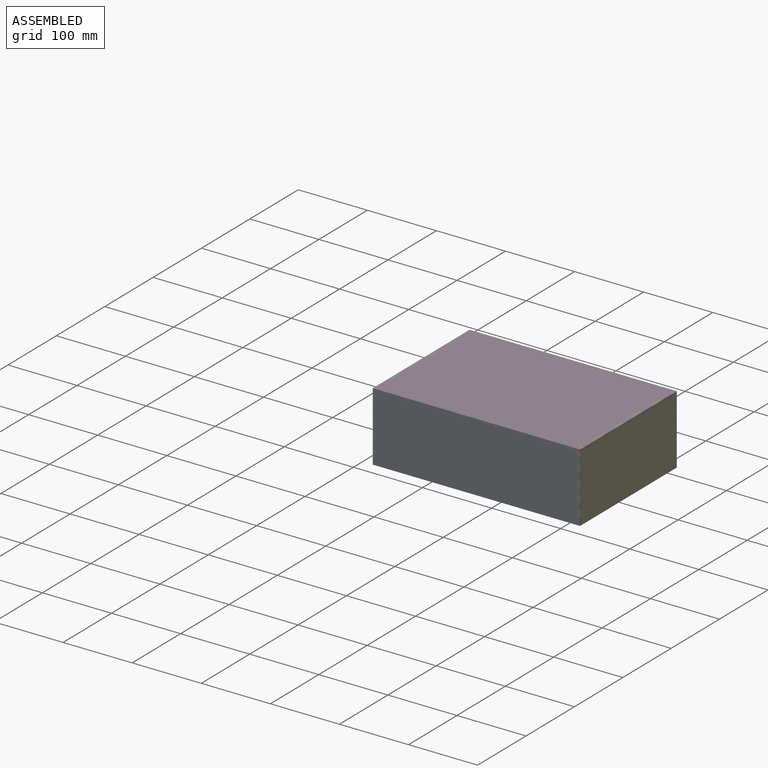
[diagram: assembled view]
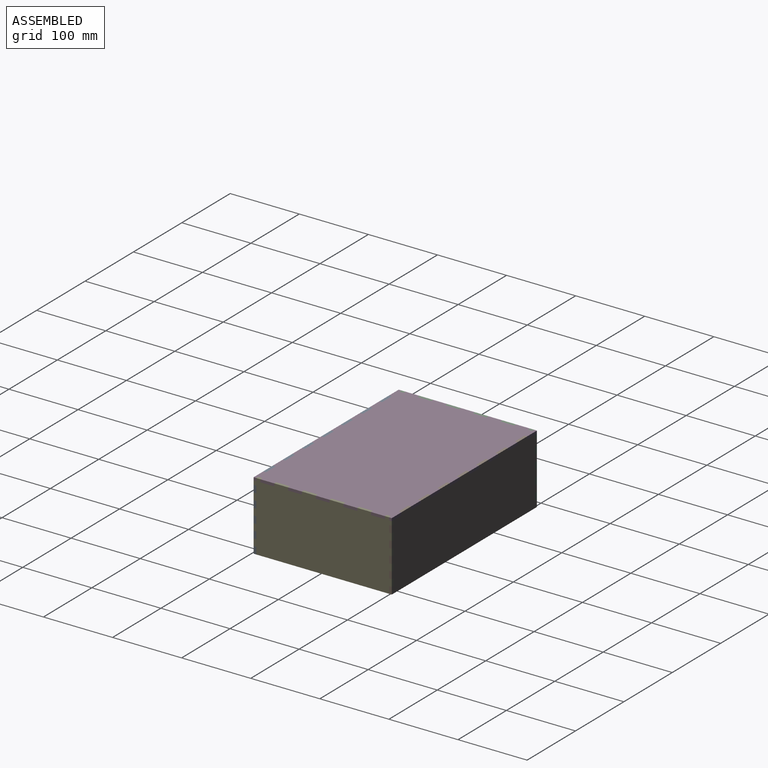
[diagram: assembled view, second angle]
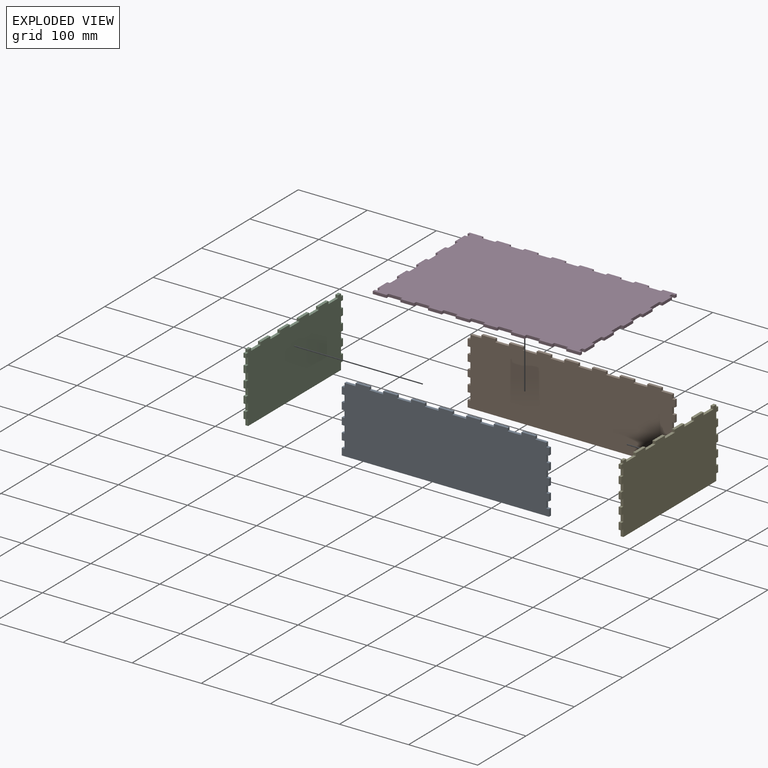
[diagram: exploded view]
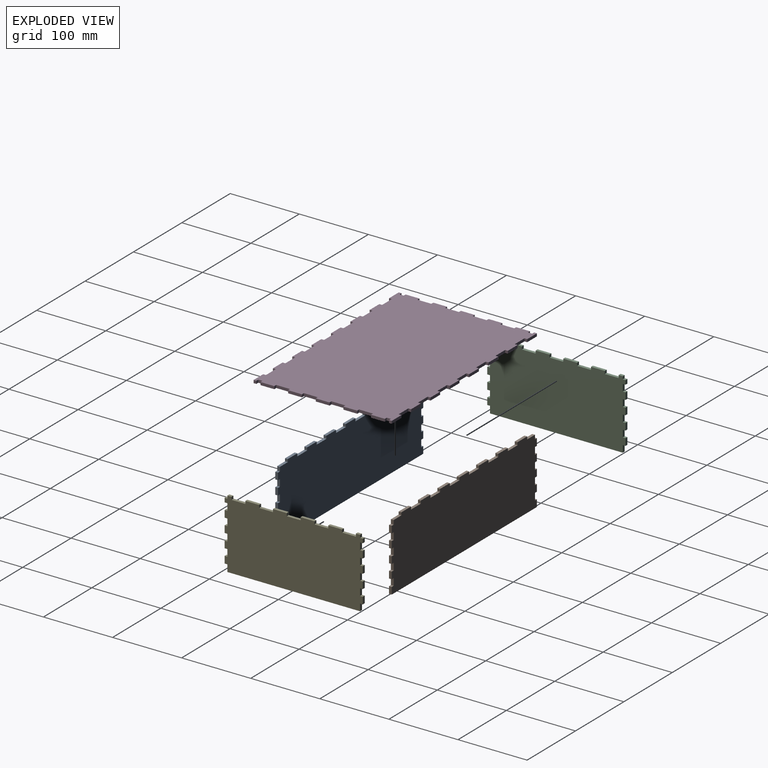
[diagram: exploded view, second angle]
ASSEMBLY  parts=5 mates=4
PART A: 70 faces, bbox 300x4x100 mm
  f0: plane 10x4mm, normal (-1,0,0), area 40mm2, adj f1,f67,f68,f69
  f1: plane 4x4mm, normal (0,0,1), area 16mm2, adj f0,f2,f68,f69
  f2: plane 10x4mm, normal (-1,0,0), area 40mm2, adj f1,f3,f68,f69
  f3: plane 300x4mm, normal (0,0,-1), area 1200mm2, adj f2,f4,f68,f69
  f4: plane 10x4mm, normal (1,0,0), area 40mm2, adj f3,f5,f68,f69
  f5: plane 4x4mm, normal (0,0,1), area 16mm2, adj f4,f6,f68,f69
  f6: plane 10x4mm, normal (1,0,0), area 40mm2, adj f5,f7,f68,f69
  f7: plane 4x4mm, normal (0,0,-1), area 16mm2, adj f6,f8,f68,f69
  f8: plane 10x4mm, normal (1,0,0), area 40mm2, adj f7,f9,f68,f69
  f9: plane 4x4mm, normal (0,0,1), area 16mm2, adj f8,f10,f68,f69
  f10: plane 10x4mm, normal (1,0,0), area 40mm2, adj f9,f11,f68,f69
  f11: plane 4x4mm, normal (0,0,-1), area 16mm2, adj f10,f12,f68,f69
  f12: plane 10x4mm, normal (1,0,0), area 40mm2, adj f11,f13,f68,f69
  f13: plane 4x4mm, normal (0,0,1), area 16mm2, adj f12,f14,f68,f69
  f14: plane 10x4mm, normal (1,0,0), area 40mm2, adj f13,f15,f68,f69
  f15: plane 4x4mm, normal (0,0,-1), area 16mm2, adj f14,f16,f68,f69
  f16: plane 10x4mm, normal (1,0,0), area 40mm2, adj f15,f17,f68,f69
  f17: plane 4x4mm, normal (0,0,1), area 16mm2, adj f16,f18,f68,f69
  f18: plane 10x4mm, normal (1,0,0), area 40mm2, adj f17,f19,f68,f69
  f19: plane 4x4mm, normal (0,0,-1), area 16mm2, adj f18,f20,f68,f69
  f20: plane 10x4mm, normal (1,0,0), area 40mm2, adj f19,f21,f68,f69
  f21: plane 4x4mm, normal (0,0,1), area 16mm2, adj f20,f22,f68,f69
  f22: plane 6x4mm, normal (1,0,0), area 24mm2, adj f21,f23,f68,f69
  f23: plane 16x4mm, normal (0,0,1), area 64mm2, adj f22,f24,f68,f69
  f24: plane 4x4mm, normal (1,0,0), area 16mm2, adj f23,f25,f68,f69
  f25: plane 20x4mm, normal (0,0,1), area 80mm2, adj f24,f26,f68,f69
  f26: plane 4x4mm, normal (-1,0,0), area 16mm2, adj f25,f27,f68,f69
  f27: plane 20x4mm, normal (0,0,1), area 80mm2, adj f26,f28,f68,f69
  f28: plane 4x4mm, normal (1,0,0), area 16mm2, adj f27,f29,f68,f69
  f29: plane 20x4mm, normal (0,0,1), area 80mm2, adj f28,f30,f68,f69
  f30: plane 4x4mm, normal (-1,0,0), area 16mm2, adj f29,f31,f68,f69
  f31: plane 20x4mm, normal (0,0,1), area 80mm2, adj f30,f32,f68,f69
  f32: plane 4x4mm, normal (1,0,0), area 16mm2, adj f31,f33,f68,f69
  f33: plane 20x4mm, normal (0,0,1), area 80mm2, adj f32,f34,f68,f69
  f34: plane 4x4mm, normal (-1,0,0), area 16mm2, adj f33,f35,f68,f69
  f35: plane 20x4mm, normal (0,0,1), area 80mm2, adj f34,f36,f68,f69
  f36: plane 4x4mm, normal (1,0,0), area 16mm2, adj f35,f37,f68,f69
  f37: plane 20x4mm, normal (0,0,1), area 80mm2, adj f36,f38,f68,f69
  f38: plane 4x4mm, normal (-1,0,0), area 16mm2, adj f37,f39,f68,f69
  f39: plane 20x4mm, normal (0,0,1), area 80mm2, adj f38,f40,f68,f69
  f40: plane 4x4mm, normal (1,0,0), area 16mm2, adj f39,f41,f68,f69
  f41: plane 20x4mm, normal (0,0,1), area 80mm2, adj f40,f42,f68,f69
  f42: plane 4x4mm, normal (-1,0,0), area 16mm2, adj f41,f43,f68,f69
  f43: plane 20x4mm, normal (0,0,1), area 80mm2, adj f42,f44,f68,f69
  f44: plane 4x4mm, normal (1,0,0), area 16mm2, adj f43,f45,f68,f69
  f45: plane 20x4mm, normal (0,0,1), area 80mm2, adj f44,f46,f68,f69
  f46: plane 4x4mm, normal (-1,0,0), area 16mm2, adj f45,f47,f68,f69
  f47: plane 20x4mm, normal (0,0,1), area 80mm2, adj f46,f48,f68,f69
  f48: plane 4x4mm, normal (1,0,0), area 16mm2, adj f47,f49,f68,f69
  f49: plane 20x4mm, normal (0,0,1), area 80mm2, adj f48,f50,f68,f69
  f50: plane 4x4mm, normal (-1,0,0), area 16mm2, adj f49,f51,f68,f69
  f51: plane 16x4mm, normal (0,0,1), area 64mm2, adj f50,f52,f68,f69
  f52: plane 6x4mm, normal (-1,0,0), area 24mm2, adj f51,f53,f68,f69
  f53: plane 4x4mm, normal (0,0,1), area 16mm2, adj f52,f54,f68,f69
  f54: plane 10x4mm, normal (-1,0,0), area 40mm2, adj f53,f55,f68,f69
  f55: plane 4x4mm, normal (0,0,-1), area 16mm2, adj f54,f56,f68,f69
  f56: plane 10x4mm, normal (-1,0,0), area 40mm2, adj f55,f57,f68,f69
  f57: plane 4x4mm, normal (0,0,1), area 16mm2, adj f56,f58,f68,f69
  f58: plane 10x4mm, normal (-1,0,0), area 40mm2, adj f57,f59,f68,f69
  f59: plane 4x4mm, normal (0,0,-1), area 16mm2, adj f58,f60,f68,f69
  f60: plane 10x4mm, normal (-1,0,0), area 40mm2, adj f59,f61,f68,f69
  f61: plane 4x4mm, normal (0,0,1), area 16mm2, adj f60,f62,f68,f69
  f62: plane 10x4mm, normal (-1,0,0), area 40mm2, adj f61,f63,f68,f69
  f63: plane 4x4mm, normal (0,0,-1), area 16mm2, adj f62,f64,f68,f69
  f64: plane 10x4mm, normal (-1,0,0), area 40mm2, adj f63,f65,f68,f69
  f65: plane 4x4mm, normal (0,0,1), area 16mm2, adj f64,f66,f68,f69
  f66: plane 10x4mm, normal (-1,0,0), area 40mm2, adj f65,f67,f68,f69
  f67: plane 4x4mm, normal (0,0,-1), area 16mm2, adj f0,f66,f68,f69
  f68: plane 300x100mm, normal (0,1,0), area 28992mm2, adj f0,f1,f2,f3,f4,f5,f6,f7
  f69: plane 300x100mm, normal (0,-1,0), area 28992mm2, adj f0,f1,f2,f3,f4,f5,f6,f7
PART B: same geometry as A
PART C: 66 faces, bbox 4x200x100 mm
  f0: plane 20x4mm, normal (0,0,1), area 80mm2, adj f1,f63,f64,f65
  f1: plane 4x4mm, normal (0,1,0), area 16mm2, adj f0,f2,f64,f65
  f2: plane 20x4mm, normal (0,0,1), area 80mm2, adj f1,f3,f64,f65
  f3: plane 4x4mm, normal (0,-1,0), area 16mm2, adj f2,f4,f64,f65
  f4: plane 20x4mm, normal (0,0,1), area 80mm2, adj f3,f5,f64,f65
  f5: plane 4x4mm, normal (0,1,0), area 16mm2, adj f4,f6,f64,f65
  f6: plane 6x4mm, normal (0,0,1), area 24mm2, adj f5,f7,f64,f65
  f7: plane 4x4mm, normal (0,-1,0), area 16mm2, adj f6,f8,f64,f65
  f8: plane 4x4mm, normal (0,0,1), area 16mm2, adj f7,f9,f64,f65
  f9: plane 6x4mm, normal (0,-1,0), area 24mm2, adj f8,f10,f64,f65
  f10: plane 4x4mm, normal (0,0,-1), area 16mm2, adj f9,f11,f64,f65
  f11: plane 10x4mm, normal (0,-1,0), area 40mm2, adj f10,f12,f64,f65
  f12: plane 4x4mm, normal (0,0,1), area 16mm2, adj f11,f13,f64,f65
  f13: plane 10x4mm, normal (0,-1,0), area 40mm2, adj f12,f14,f64,f65
  f14: plane 4x4mm, normal (0,0,-1), area 16mm2, adj f13,f15,f64,f65
  f15: plane 10x4mm, normal (0,-1,0), area 40mm2, adj f14,f16,f64,f65
  f16: plane 4x4mm, normal (0,0,1), area 16mm2, adj f15,f17,f64,f65
  f17: plane 10x4mm, normal (0,-1,0), area 40mm2, adj f16,f18,f64,f65
  f18: plane 4x4mm, normal (0,0,-1), area 16mm2, adj f17,f19,f64,f65
  f19: plane 10x4mm, normal (0,-1,0), area 40mm2, adj f18,f20,f64,f65
  f20: plane 4x4mm, normal (0,0,1), area 16mm2, adj f19,f21,f64,f65
  f21: plane 10x4mm, normal (0,-1,0), area 40mm2, adj f20,f22,f64,f65
  f22: plane 4x4mm, normal (0,0,-1), area 16mm2, adj f21,f23,f64,f65
  f23: plane 10x4mm, normal (0,-1,0), area 40mm2, adj f22,f24,f64,f65
  f24: plane 4x4mm, normal (0,0,1), area 16mm2, adj f23,f25,f64,f65
  f25: plane 10x4mm, normal (0,-1,0), area 40mm2, adj f24,f26,f64,f65
  f26: plane 4x4mm, normal (0,0,-1), area 16mm2, adj f25,f27,f64,f65
  f27: plane 10x4mm, normal (0,-1,0), area 40mm2, adj f26,f28,f64,f65
  f28: plane 192x4mm, normal (0,0,-1), area 768mm2, adj f27,f29,f64,f65
  f29: plane 10x4mm, normal (0,1,0), area 40mm2, adj f28,f30,f64,f65
  f30: plane 4x4mm, normal (0,0,-1), area 16mm2, adj f29,f31,f64,f65
  f31: plane 10x4mm, normal (0,1,0), area 40mm2, adj f30,f32,f64,f65
  f32: plane 4x4mm, normal (0,0,1), area 16mm2, adj f31,f33,f64,f65
  f33: plane 10x4mm, normal (0,1,0), area 40mm2, adj f32,f34,f64,f65
  f34: plane 4x4mm, normal (0,0,-1), area 16mm2, adj f33,f35,f64,f65
  f35: plane 10x4mm, normal (0,1,0), area 40mm2, adj f34,f36,f64,f65
  f36: plane 4x4mm, normal (0,0,1), area 16mm2, adj f35,f37,f64,f65
  f37: plane 10x4mm, normal (0,1,0), area 40mm2, adj f36,f38,f64,f65
  f38: plane 4x4mm, normal (0,0,-1), area 16mm2, adj f37,f39,f64,f65
  f39: plane 10x4mm, normal (0,1,0), area 40mm2, adj f38,f40,f64,f65
  f40: plane 4x4mm, normal (0,0,1), area 16mm2, adj f39,f41,f64,f65
  f41: plane 10x4mm, normal (0,1,0), area 40mm2, adj f40,f42,f64,f65
  f42: plane 4x4mm, normal (0,0,-1), area 16mm2, adj f41,f43,f64,f65
  f43: plane 10x4mm, normal (0,1,0), area 40mm2, adj f42,f44,f64,f65
  f44: plane 4x4mm, normal (0,0,1), area 16mm2, adj f43,f45,f64,f65
  f45: plane 10x4mm, normal (0,1,0), area 40mm2, adj f44,f46,f64,f65
  f46: plane 4x4mm, normal (0,0,-1), area 16mm2, adj f45,f47,f64,f65
  f47: plane 6x4mm, normal (0,1,0), area 24mm2, adj f46,f48,f64,f65
  f48: plane 4x4mm, normal (0,0,1), area 16mm2, adj f47,f49,f64,f65
  f49: plane 4x4mm, normal (0,1,0), area 16mm2, adj f48,f50,f64,f65
  f50: plane 6x4mm, normal (0,0,1), area 24mm2, adj f49,f51,f64,f65
  f51: plane 4x4mm, normal (0,-1,0), area 16mm2, adj f50,f52,f64,f65
  f52: plane 20x4mm, normal (0,0,1), area 80mm2, adj f51,f53,f64,f65
  f53: plane 4x4mm, normal (0,1,0), area 16mm2, adj f52,f54,f64,f65
  f54: plane 20x4mm, normal (0,0,1), area 80mm2, adj f53,f55,f64,f65
  f55: plane 4x4mm, normal (0,-1,0), area 16mm2, adj f54,f56,f64,f65
  f56: plane 20x4mm, normal (0,0,1), area 80mm2, adj f55,f57,f64,f65
  f57: plane 4x4mm, normal (0,1,0), area 16mm2, adj f56,f58,f64,f65
  f58: plane 20x4mm, normal (0,0,1), area 80mm2, adj f57,f59,f64,f65
  f59: plane 4x4mm, normal (0,-1,0), area 16mm2, adj f58,f60,f64,f65
  f60: plane 20x4mm, normal (0,0,1), area 80mm2, adj f59,f61,f64,f65
  f61: plane 4x4mm, normal (0,1,0), area 16mm2, adj f60,f62,f64,f65
  f62: plane 20x4mm, normal (0,0,1), area 80mm2, adj f61,f63,f64,f65
  f63: plane 4x4mm, normal (0,-1,0), area 16mm2, adj f0,f62,f64,f65
  f64: plane 200x100mm, normal (-1,0,0), area 19168mm2, adj f0,f1,f2,f3,f4,f5,f6,f7
  f65: plane 200x100mm, normal (1,0,0), area 19168mm2, adj f0,f1,f2,f3,f4,f5,f6,f7
PART D: 110 faces, bbox 300x200x4 mm
  f0: plane 6x4mm, normal (-1,0,0), area 24mm2, adj f1,f107,f108,f109
  f1: plane 4x4mm, normal (0,1,0), area 16mm2, adj f0,f2,f108,f109
  f2: plane 4x4mm, normal (-1,0,0), area 16mm2, adj f1,f3,f108,f109
  f3: plane 20x4mm, normal (0,-1,0), area 80mm2, adj f2,f4,f108,f109
  f4: plane 4x4mm, normal (1,0,0), area 16mm2, adj f3,f5,f108,f109
  f5: plane 20x4mm, normal (0,-1,0), area 80mm2, adj f4,f6,f108,f109
  f6: plane 4x4mm, normal (-1,0,0), area 16mm2, adj f5,f7,f108,f109
  f7: plane 20x4mm, normal (0,-1,0), area 80mm2, adj f6,f8,f108,f109
  f8: plane 4x4mm, normal (1,0,0), area 16mm2, adj f7,f9,f108,f109
  f9: plane 20x4mm, normal (0,-1,0), area 80mm2, adj f8,f10,f108,f109
  f10: plane 4x4mm, normal (-1,0,0), area 16mm2, adj f9,f11,f108,f109
  f11: plane 20x4mm, normal (0,-1,0), area 80mm2, adj f10,f12,f108,f109
  f12: plane 4x4mm, normal (1,0,0), area 16mm2, adj f11,f13,f108,f109
  f13: plane 20x4mm, normal (0,-1,0), area 80mm2, adj f12,f14,f108,f109
  f14: plane 4x4mm, normal (-1,0,0), area 16mm2, adj f13,f15,f108,f109
  f15: plane 20x4mm, normal (0,-1,0), area 80mm2, adj f14,f16,f108,f109
  f16: plane 4x4mm, normal (1,0,0), area 16mm2, adj f15,f17,f108,f109
  f17: plane 20x4mm, normal (0,-1,0), area 80mm2, adj f16,f18,f108,f109
  f18: plane 4x4mm, normal (-1,0,0), area 16mm2, adj f17,f19,f108,f109
  f19: plane 20x4mm, normal (0,-1,0), area 80mm2, adj f18,f20,f108,f109
  f20: plane 4x4mm, normal (1,0,0), area 16mm2, adj f19,f21,f108,f109
  f21: plane 20x4mm, normal (0,-1,0), area 80mm2, adj f20,f22,f108,f109
  f22: plane 4x4mm, normal (-1,0,0), area 16mm2, adj f21,f23,f108,f109
  f23: plane 20x4mm, normal (0,-1,0), area 80mm2, adj f22,f24,f108,f109
  f24: plane 4x4mm, normal (1,0,0), area 16mm2, adj f23,f25,f108,f109
  f25: plane 20x4mm, normal (0,-1,0), area 80mm2, adj f24,f26,f108,f109
  f26: plane 4x4mm, normal (-1,0,0), area 16mm2, adj f25,f27,f108,f109
  f27: plane 20x4mm, normal (0,-1,0), area 80mm2, adj f26,f28,f108,f109
  f28: plane 4x4mm, normal (1,0,0), area 16mm2, adj f27,f29,f108,f109
  f29: plane 20x4mm, normal (0,-1,0), area 80mm2, adj f28,f30,f108,f109
  f30: plane 4x4mm, normal (-1,0,0), area 16mm2, adj f29,f31,f108,f109
  f31: plane 20x4mm, normal (0,-1,0), area 80mm2, adj f30,f32,f108,f109
  f32: plane 4x4mm, normal (1,0,0), area 16mm2, adj f31,f33,f108,f109
  f33: plane 4x4mm, normal (0,1,0), area 16mm2, adj f32,f34,f108,f109
  f34: plane 6x4mm, normal (1,0,0), area 24mm2, adj f33,f35,f108,f109
  f35: plane 4x4mm, normal (0,-1,0), area 16mm2, adj f34,f36,f108,f109
  f36: plane 20x4mm, normal (1,0,0), area 80mm2, adj f35,f37,f108,f109
  f37: plane 4x4mm, normal (0,1,0), area 16mm2, adj f36,f38,f108,f109
  f38: plane 20x4mm, normal (1,0,0), area 80mm2, adj f37,f39,f108,f109
  f39: plane 4x4mm, normal (0,-1,0), area 16mm2, adj f38,f40,f108,f109
  f40: plane 20x4mm, normal (1,0,0), area 80mm2, adj f39,f41,f108,f109
  f41: plane 4x4mm, normal (0,1,0), area 16mm2, adj f40,f42,f108,f109
  f42: plane 20x4mm, normal (1,0,0), area 80mm2, adj f41,f43,f108,f109
  f43: plane 4x4mm, normal (0,-1,0), area 16mm2, adj f42,f44,f108,f109
  f44: plane 20x4mm, normal (1,0,0), area 80mm2, adj f43,f45,f108,f109
  f45: plane 4x4mm, normal (0,1,0), area 16mm2, adj f44,f46,f108,f109
  f46: plane 20x4mm, normal (1,0,0), area 80mm2, adj f45,f47,f108,f109
  f47: plane 4x4mm, normal (0,-1,0), area 16mm2, adj f46,f48,f108,f109
  f48: plane 20x4mm, normal (1,0,0), area 80mm2, adj f47,f49,f108,f109
  f49: plane 4x4mm, normal (0,1,0), area 16mm2, adj f48,f50,f108,f109
  f50: plane 20x4mm, normal (1,0,0), area 80mm2, adj f49,f51,f108,f109
  f51: plane 4x4mm, normal (0,-1,0), area 16mm2, adj f50,f52,f108,f109
  f52: plane 20x4mm, normal (1,0,0), area 80mm2, adj f51,f53,f108,f109
  f53: plane 4x4mm, normal (0,1,0), area 16mm2, adj f52,f54,f108,f109
  f54: plane 6x4mm, normal (1,0,0), area 24mm2, adj f53,f55,f108,f109
  f55: plane 4x4mm, normal (0,-1,0), area 16mm2, adj f54,f56,f108,f109
  f56: plane 4x4mm, normal (1,0,0), area 16mm2, adj f55,f57,f108,f109
  f57: plane 20x4mm, normal (0,1,0), area 80mm2, adj f56,f58,f108,f109
  f58: plane 4x4mm, normal (-1,0,0), area 16mm2, adj f57,f59,f108,f109
  f59: plane 20x4mm, normal (0,1,0), area 80mm2, adj f58,f60,f108,f109
  f60: plane 4x4mm, normal (1,0,0), area 16mm2, adj f59,f61,f108,f109
  f61: plane 20x4mm, normal (0,1,0), area 80mm2, adj f60,f62,f108,f109
  f62: plane 4x4mm, normal (-1,0,0), area 16mm2, adj f61,f63,f108,f109
  f63: plane 20x4mm, normal (0,1,0), area 80mm2, adj f62,f64,f108,f109
  f64: plane 4x4mm, normal (1,0,0), area 16mm2, adj f63,f65,f108,f109
  f65: plane 20x4mm, normal (0,1,0), area 80mm2, adj f64,f66,f108,f109
  f66: plane 4x4mm, normal (-1,0,0), area 16mm2, adj f65,f67,f108,f109
  f67: plane 20x4mm, normal (0,1,0), area 80mm2, adj f66,f68,f108,f109
  f68: plane 4x4mm, normal (1,0,0), area 16mm2, adj f67,f69,f108,f109
  f69: plane 20x4mm, normal (0,1,0), area 80mm2, adj f68,f70,f108,f109
  f70: plane 4x4mm, normal (-1,0,0), area 16mm2, adj f69,f71,f108,f109
  f71: plane 20x4mm, normal (0,1,0), area 80mm2, adj f70,f72,f108,f109
  f72: plane 4x4mm, normal (1,0,0), area 16mm2, adj f71,f73,f108,f109
  f73: plane 20x4mm, normal (0,1,0), area 80mm2, adj f72,f74,f108,f109
  f74: plane 4x4mm, normal (-1,0,0), area 16mm2, adj f73,f75,f108,f109
  f75: plane 20x4mm, normal (0,1,0), area 80mm2, adj f74,f76,f108,f109
  f76: plane 4x4mm, normal (1,0,0), area 16mm2, adj f75,f77,f108,f109
  f77: plane 20x4mm, normal (0,1,0), area 80mm2, adj f76,f78,f108,f109
  f78: plane 4x4mm, normal (-1,0,0), area 16mm2, adj f77,f79,f108,f109
  f79: plane 20x4mm, normal (0,1,0), area 80mm2, adj f78,f80,f108,f109
  f80: plane 4x4mm, normal (1,0,0), area 16mm2, adj f79,f81,f108,f109
  f81: plane 20x4mm, normal (0,1,0), area 80mm2, adj f80,f82,f108,f109
  f82: plane 4x4mm, normal (-1,0,0), area 16mm2, adj f81,f83,f108,f109
  f83: plane 20x4mm, normal (0,1,0), area 80mm2, adj f82,f84,f108,f109
  f84: plane 4x4mm, normal (1,0,0), area 16mm2, adj f83,f85,f108,f109
  f85: plane 20x4mm, normal (0,1,0), area 80mm2, adj f84,f86,f108,f109
  f86: plane 4x4mm, normal (-1,0,0), area 16mm2, adj f85,f87,f108,f109
  f87: plane 4x4mm, normal (0,-1,0), area 16mm2, adj f86,f88,f108,f109
  f88: plane 6x4mm, normal (-1,0,0), area 24mm2, adj f87,f89,f108,f109
  f89: plane 4x4mm, normal (0,1,0), area 16mm2, adj f88,f90,f108,f109
  f90: plane 20x4mm, normal (-1,0,0), area 80mm2, adj f89,f91,f108,f109
  f91: plane 4x4mm, normal (0,-1,0), area 16mm2, adj f90,f92,f108,f109
  f92: plane 20x4mm, normal (-1,0,0), area 80mm2, adj f91,f93,f108,f109
  f93: plane 4x4mm, normal (0,1,0), area 16mm2, adj f92,f94,f108,f109
  f94: plane 20x4mm, normal (-1,0,0), area 80mm2, adj f93,f95,f108,f109
  f95: plane 4x4mm, normal (0,-1,0), area 16mm2, adj f94,f96,f108,f109
  f96: plane 20x4mm, normal (-1,0,0), area 80mm2, adj f95,f97,f108,f109
  f97: plane 4x4mm, normal (0,1,0), area 16mm2, adj f96,f98,f108,f109
  f98: plane 20x4mm, normal (-1,0,0), area 80mm2, adj f97,f99,f108,f109
  f99: plane 4x4mm, normal (0,-1,0), area 16mm2, adj f98,f100,f108,f109
  f100: plane 20x4mm, normal (-1,0,0), area 80mm2, adj f99,f101,f108,f109
  f101: plane 4x4mm, normal (0,1,0), area 16mm2, adj f100,f102,f108,f109
  f102: plane 20x4mm, normal (-1,0,0), area 80mm2, adj f101,f103,f108,f109
  f103: plane 4x4mm, normal (0,-1,0), area 16mm2, adj f102,f104,f108,f109
  f104: plane 20x4mm, normal (-1,0,0), area 80mm2, adj f103,f105,f108,f109
  f105: plane 4x4mm, normal (0,1,0), area 16mm2, adj f104,f106,f108,f109
  f106: plane 20x4mm, normal (-1,0,0), area 80mm2, adj f105,f107,f108,f109
  f107: plane 4x4mm, normal (0,-1,0), area 16mm2, adj f0,f106,f108,f109
  f108: plane 300x200mm, normal (0,0,1), area 58144mm2, adj f0,f1,f2,f3,f4,f5,f6,f7
  f109: plane 300x200mm, normal (0,0,-1), area 58144mm2, adj f0,f1,f2,f3,f4,f5,f6,f7
PART E: same geometry as C
PLACE A t=(-128.4,109.23,-136.64)mm
PLACE B t=(-128.4,305.23,-136.64)mm
PLACE C t=(-424.4,109.23,-136.64)mm
PLACE D t=(-128.4,109.23,-136.64)mm
PLACE E t=(-128.4,109.23,-136.64)mm
MATE fastened D.f84 <-> B.f50  axis (1,0,0) through (-258.4,207.23,-134.64)mm
MATE fastened D.f4 <-> A.f50  axis (1,0,0) through (-258.4,11.23,-134.64)mm
MATE fastened C.f7 <-> D.f1  axis (0,-1,0) through (-276.4,13.23,-134.64)mm
MATE fastened E.f49 <-> D.f55  axis (0,1,0) through (19.6,205.23,-134.64)mm
